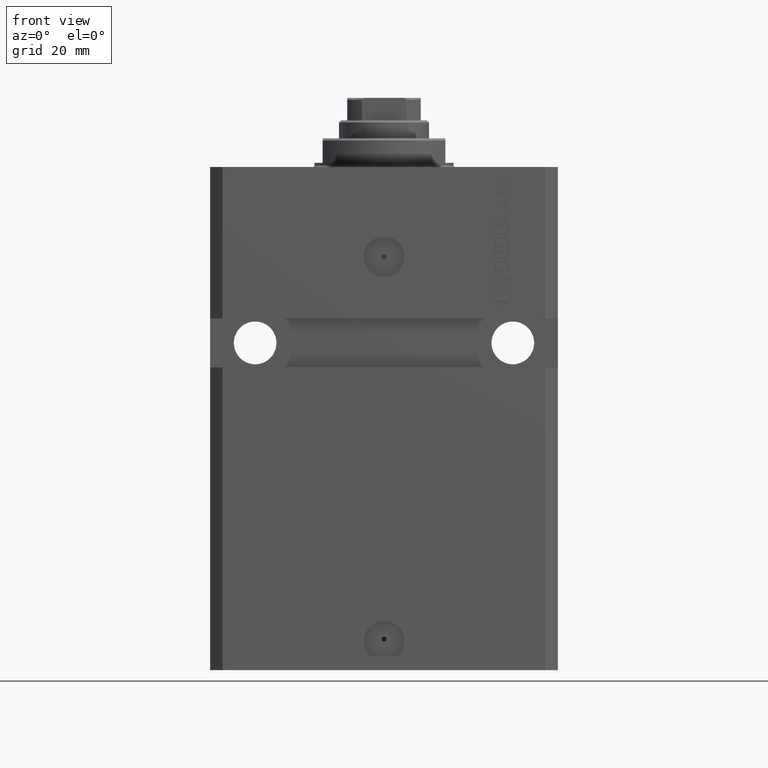
[diagram: clean part render]
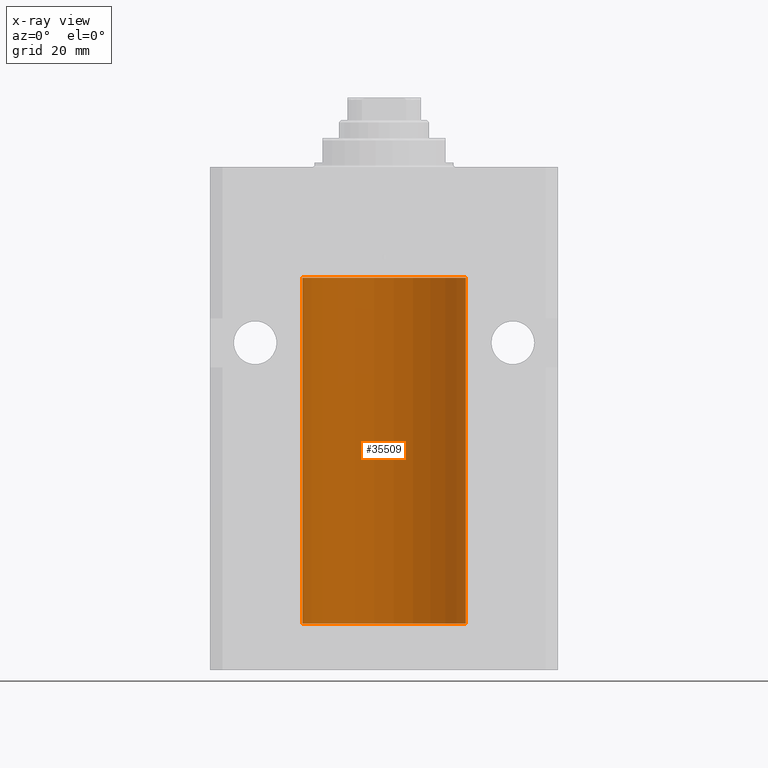
[diagram: x-ray — body ghosted, one internal face saturated and labeled with its STEP entity id]
A machine part, front view, then the same camera in x-ray: the body is ghosted and one INTERNAL B-rep face — a face not visible from any outside direction — is saturated and labeled: STEP entity #35509.
In plain terms, the highlighted cylindrical surface (partial cylindrical patch) has radius 20 mm, axis along (0, 0, 1).
Its self-contained STEP definition (entity closure, byte-faithful):
#2449 = VERTEX_POINT ( 'NONE', #40546 ) ;
#3231 = CARTESIAN_POINT ( 'NONE',  ( -19.99023380173165876, 0.6249420416828411762, -108.8367079305639322 ) ) ;
#3859 = CARTESIAN_POINT ( 'NONE',  ( -20.00000000000000000, 2.449293598294706513E-15, -111.6000000000000085 ) ) ;
#3932 = CARTESIAN_POINT ( 'NONE',  ( -20.00000000000000000, -1.494965790691426527E-14, -108.3750000000000000 ) ) ;
#6602 = CARTESIAN_POINT ( 'NONE',  ( -19.99253506710754991, 0.5587120480776772702, -109.3251162083024894 ) ) ;
#7304 = CIRCLE ( 'NONE', #11912, 20.00000000000000000 ) ;
#7309 = DIRECTION ( 'NONE',  ( -0.000000000000000000, -0.000000000000000000, 1.000000000000000000 ) ) ;
#7529 = VERTEX_POINT ( 'NONE', #26798 ) ;
#7546 = CARTESIAN_POINT ( 'NONE',  ( -19.99023018003212471, 0.6250578794725484277, -109.1628480970496895 ) ) ;
#8054 = CARTESIAN_POINT ( 'NONE',  ( 0.000000000000000000, 0.000000000000000000, -27.10000000000000142 ) ) ;
#8310 = EDGE_CURVE ( 'NONE', #7529, #28479, #7304, .T. ) ;
#11187 = LINE ( 'NONE', #29707, #19932 ) ;
#11912 = AXIS2_PLACEMENT_3D ( 'NONE', #8054, #22722, #36924 ) ;
#12984 = CARTESIAN_POINT ( 'NONE',  ( -20.00000000000000000, -1.494965790691426527E-14, -108.3750000000000000 ) ) ;
#12995 = EDGE_CURVE ( 'NONE', #2449, #30616, #11187, .T. ) ;
#13471 = B_SPLINE_CURVE_WITH_KNOTS ( 'NONE', 3,
 ( #3932, #29681, #40028, #39559, #47254, #28731, #3231, #7546, #6602, #43401, #43887, #43642 ),
 .UNSPECIFIED., .F., .F.,
 ( 4, 2, 2, 2, 2, 4 ),
 ( 1.555867690894744095E-18, 0.0002442693137305176681, 0.0004885386274610337099, 0.0009770772549220949586, 0.001465615882383156099, 0.001954154509844217673 ),
 .UNSPECIFIED. ) ;
#14558 = DIRECTION ( 'NONE',  ( -0.000000000000000000, -0.000000000000000000, 1.000000000000000000 ) ) ;
#14794 = ORIENTED_EDGE ( 'NONE', *, *, #8310, .T. ) ;
#14845 = EDGE_CURVE ( 'NONE', #46907, #28479, #39958, .T. ) ;
#16864 = CARTESIAN_POINT ( 'NONE',  ( -20.00000000000000000, 2.449293598294706513E-15, -27.10000000000000142 ) ) ;
#16959 = CARTESIAN_POINT ( 'NONE',  ( 0.000000000000000000, 0.000000000000000000, -111.6000000000000085 ) ) ;
#19832 = AXIS2_PLACEMENT_3D ( 'NONE', #35781, #21101, #28088 ) ;
#19932 = VECTOR ( 'NONE', #14558, 1000.000000000000000 ) ;
#20558 = CYLINDRICAL_SURFACE ( 'NONE', #22091, 20.00000000000000000 ) ;
#21101 = DIRECTION ( 'NONE',  ( 0.000000000000000000, 0.000000000000000000, 1.000000000000000000 ) ) ;
#21245 = ORIENTED_EDGE ( 'NONE', *, *, #14845, .F. ) ;
#21248 = ORIENTED_EDGE ( 'NONE', *, *, #39777, .F. ) ;
#22091 = AXIS2_PLACEMENT_3D ( 'NONE', #16959, #46545, #39557 ) ;
#22149 = DIRECTION ( 'NONE',  ( -0.000000000000000000, -0.000000000000000000, 1.000000000000000000 ) ) ;
#22317 = EDGE_CURVE ( 'NONE', #46907, #30616, #13471, .T. ) ;
#22722 = DIRECTION ( 'NONE',  ( 0.000000000000000000, 0.000000000000000000, 1.000000000000000000 ) ) ;
#23848 = VECTOR ( 'NONE', #22149, 1000.000000000000000 ) ;
#25395 = ORIENTED_EDGE ( 'NONE', *, *, #12995, .F. ) ;
#26798 = CARTESIAN_POINT ( 'NONE',  ( 20.00000000000000000, 0.000000000000000000, -27.10000000000000142 ) ) ;
#27053 = CARTESIAN_POINT ( 'NONE',  ( 20.00000000000000000, 0.000000000000000000, -111.6000000000000085 ) ) ;
#28088 = DIRECTION ( 'NONE',  ( 1.000000000000000000, 0.000000000000000000, 0.000000000000000000 ) ) ;
#28479 = VERTEX_POINT ( 'NONE', #16864 ) ;
#28731 = CARTESIAN_POINT ( 'NONE',  ( -19.99256581701871838, 0.5573276956901952461, -108.6734856577094916 ) ) ;
#29681 = CARTESIAN_POINT ( 'NONE',  ( -19.99999999999999289, 0.08259581631025748882, -108.3749999999999716 ) ) ;
#29707 = CARTESIAN_POINT ( 'NONE',  ( -20.00000000000000000, 2.449293598294706513E-15, -111.6000000000000085 ) ) ;
#30616 = VERTEX_POINT ( 'NONE', #33536 ) ;
#30668 = EDGE_CURVE ( 'NONE', #45253, #7529, #44123, .T. ) ;
#32349 = FACE_OUTER_BOUND ( 'NONE', #40467, .T. ) ;
#32367 = ORIENTED_EDGE ( 'NONE', *, *, #30668, .T. ) ;
#33536 = CARTESIAN_POINT ( 'NONE',  ( -20.00000000000010303, 3.580159290815452135E-13, -109.6250000000033253 ) ) ;
#34432 = CIRCLE ( 'NONE', #19832, 20.00000000000000000 ) ;
#35006 = VECTOR ( 'NONE', #7309, 1000.000000000000000 ) ;
#35509 = ADVANCED_FACE ( 'NONE', ( #32349 ), #20558, .F. ) ;
#35781 = CARTESIAN_POINT ( 'NONE',  ( 0.000000000000000000, 0.000000000000000000, -111.6000000000000085 ) ) ;
#36897 = CARTESIAN_POINT ( 'NONE',  ( 20.00000000000000000, 0.000000000000000000, -111.6000000000000085 ) ) ;
#36924 = DIRECTION ( 'NONE',  ( 1.000000000000000000, 0.000000000000000000, 0.000000000000000000 ) ) ;
#39557 = DIRECTION ( 'NONE',  ( 1.000000000000000000, 0.000000000000000000, 0.000000000000000000 ) ) ;
#39559 = CARTESIAN_POINT ( 'NONE',  ( -19.99766197842594906, 0.3150331617867563327, -108.4540207010250299 ) ) ;
#39777 = EDGE_CURVE ( 'NONE', #45253, #2449, #34432, .T. ) ;
#39958 = LINE ( 'NONE', #3859, #23848 ) ;
#40028 = CARTESIAN_POINT ( 'NONE',  ( -19.99947377218718358, 0.1636439183262759223, -108.3912636400465459 ) ) ;
#40262 = ORIENTED_EDGE ( 'NONE', *, *, #22317, .T. ) ;
#40467 = EDGE_LOOP ( 'NONE', ( #25395, #21248, #32367, #14794, #21245, #40262 ) ) ;
#40546 = CARTESIAN_POINT ( 'NONE',  ( -20.00000000000000000, 2.449293598294706513E-15, -111.6000000000000085 ) ) ;
#43401 = CARTESIAN_POINT ( 'NONE',  ( -19.99769349528941476, 0.3253804398728720182, -109.5585582072768318 ) ) ;
#43642 = CARTESIAN_POINT ( 'NONE',  ( -20.00000000000010303, 3.580159290815452135E-13, -109.6250000000033253 ) ) ;
#43887 = CARTESIAN_POINT ( 'NONE',  ( -20.00000000000000355, 0.1631688615953337806, -109.6249999999998721 ) ) ;
#44123 = LINE ( 'NONE', #36897, #35006 ) ;
#45253 = VERTEX_POINT ( 'NONE', #27053 ) ;
#46545 = DIRECTION ( 'NONE',  ( -0.000000000000000000, -0.000000000000000000, 1.000000000000000000 ) ) ;
#46907 = VERTEX_POINT ( 'NONE', #12984 ) ;
#47254 = CARTESIAN_POINT ( 'NONE',  ( -19.99638934703457593, 0.3843678041337614260, -108.5004636297810094 ) ) ;